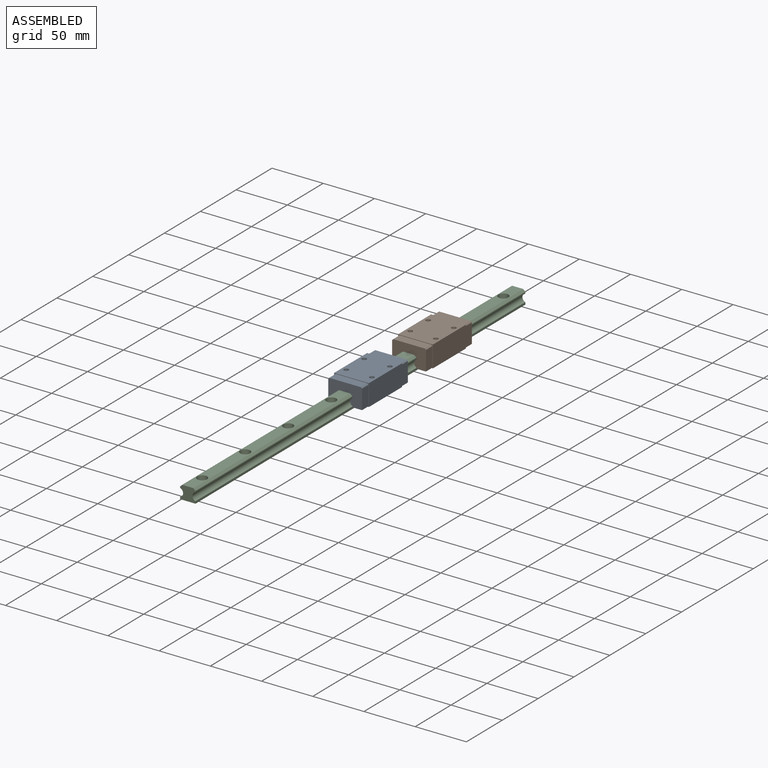
[diagram: assembled view]
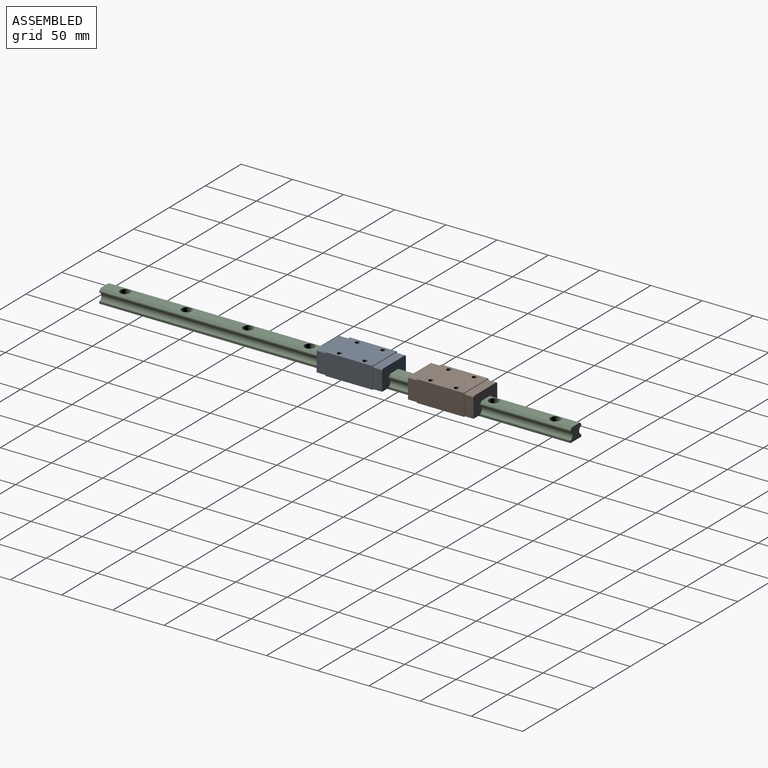
[diagram: assembled view, second angle]
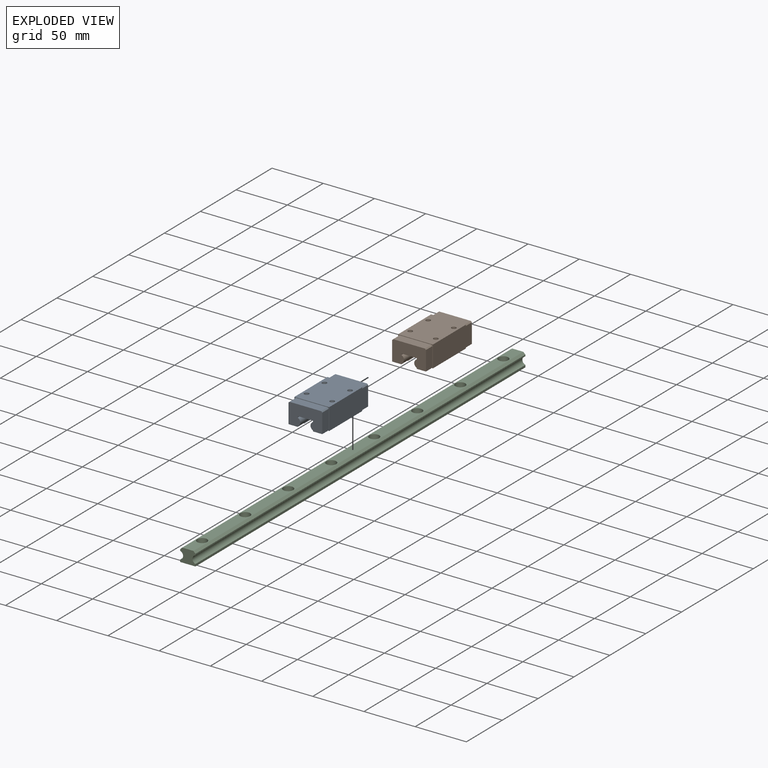
[diagram: exploded view]
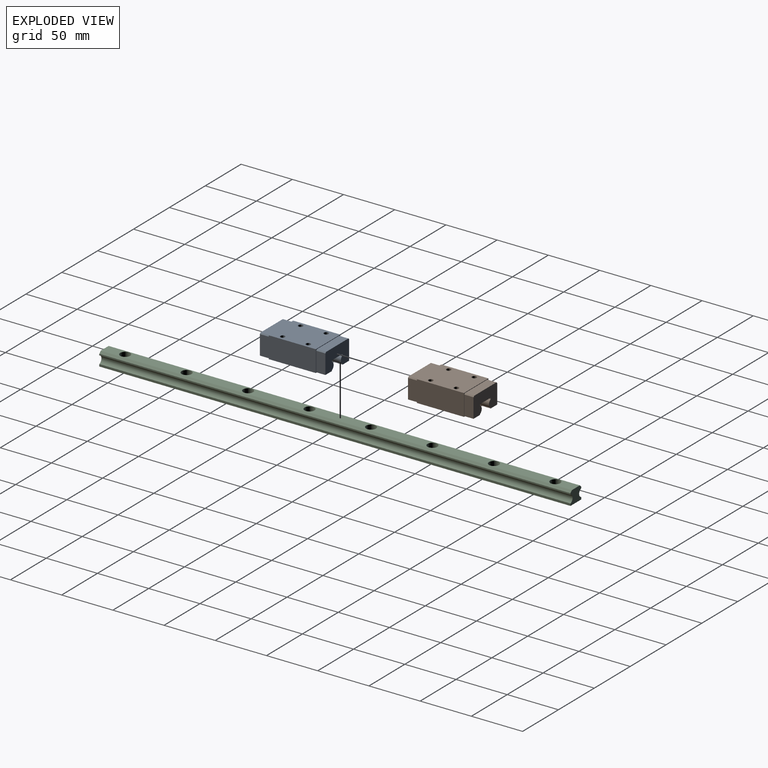
[diagram: exploded view, second angle]
ASSEMBLY  parts=3 mates=3
PART A: 38 faces, bbox 34x64x21 mm
  f0: plane 33x20mm, normal (0,1,0), area 543.3mm2, adj f6,f7,f9,f10,f11,f12,f13,f22
  f1: plane 46x9.5mm, normal (0,0,-1), area 437mm2, adj f2,f6,f21,f29
  f2: plane 46x21mm, normal (1,0,0), area 966mm2, adj f1,f3,f21,f29
  f3: plane 46x34mm, normal (0,0,1), area 1500.4mm2, adj f2,f4,f21,f29,f30,f32,f34,f36
  f4: plane 46x21mm, normal (-1,0,0), area 966mm2, adj f3,f5,f21,f29
  f5: plane 46x9.5mm, normal (0,0,-1), area 437mm2, adj f4,f7,f21,f29
  f6: plane 64x1.29mm, normal (-1,0,0), area 73.7mm2, adj f0,f1,f8,f10,f15,f21,f23,f29
  f7: plane 64x1.29mm, normal (1,0,0), area 73.7mm2, adj f0,f5,f8,f11,f14,f21,f22,f29
  f8: plane 33x20mm, normal (0,-1,0), area 543.3mm2, adj f6,f7,f9,f10,f11,f12,f13,f14
  f9: plane 64x1.29mm, normal (-1,0,0), area 82.7mm2, adj f0,f8,f10,f13
  f10: cylinder r=4mm len=64mm, axis (0,1,0), area 607.4mm2, adj f0,f6,f8,f9
  f11: cylinder r=4mm len=64mm, axis (0,1,0), area 607.4mm2, adj f0,f7,f8,f12
  f12: plane 64x1.29mm, normal (1,0,0), area 82.7mm2, adj f0,f8,f11,f13
  f13: plane 64x15mm, normal (0,0,-1), area 960mm2, adj f0,f8,f9,f12
  f14: plane 9x9mm, normal (0,0,-1), area 81mm2, adj f7,f8,f16,f21
  f15: plane 9x9mm, normal (0,0,-1), area 81mm2, adj f6,f8,f20,f21
  f16: plane 19x9mm, normal (-1,0,0), area 171mm2, adj f8,f14,f17,f21
  f17: plane 9x1mm, normal (-0.71,0,0.71), area 12.7mm2, adj f8,f16,f18,f21
  f18: plane 31x9mm, normal (0,0,1), area 279mm2, adj f8,f17,f19,f21
  f19: plane 9x1mm, normal (0.71,0,0.71), area 12.7mm2, adj f8,f18,f20,f21
  f20: plane 19x9mm, normal (1,0,0), area 171mm2, adj f8,f15,f19,f21
  f21: plane 34x21mm, normal (0,-1,0), area 47.5mm2, adj f1,f2,f3,f4,f5,f6,f7,f14
  f22: plane 9x9mm, normal (0,0,-1), area 81mm2, adj f0,f7,f28,f29
  f23: plane 9x9mm, normal (0,0,-1), area 81mm2, adj f0,f6,f24,f29
  f24: plane 19x9mm, normal (1,0,0), area 171mm2, adj f0,f23,f25,f29
  f25: plane 9x1mm, normal (0.71,0,0.71), area 12.7mm2, adj f0,f24,f26,f29
  f26: plane 31x9mm, normal (0,0,1), area 279mm2, adj f0,f25,f27,f29
  f27: plane 9x1mm, normal (-0.71,0,0.71), area 12.7mm2, adj f0,f26,f28,f29
  f28: plane 19x9mm, normal (-1,0,0), area 171mm2, adj f0,f22,f27,f29
  f29: plane 34x21mm, normal (0,1,0), area 47.5mm2, adj f1,f2,f3,f4,f5,f6,f7,f22
  f30: cylinder r=2.25mm len=10.4mm, axis (0,0,1), area 147mm2, adj f3,f31
  f31: cone r=0mm half-angle=59deg, axis (0,0,1), area 18.6mm2, adj f30
  f32: cylinder r=2.25mm len=10.4mm, axis (0,0,1), area 147mm2, adj f3,f33
  f33: cone r=0mm half-angle=59deg, axis (0,0,1), area 18.6mm2, adj f32
  f34: cylinder r=2.25mm len=10.4mm, axis (0,0,1), area 147mm2, adj f3,f35
  f35: cone r=0mm half-angle=59deg, axis (0,0,1), area 18.6mm2, adj f34
  f36: cylinder r=2.25mm len=10.4mm, axis (0,0,1), area 147mm2, adj f3,f37
  f37: cone r=0mm half-angle=59deg, axis (0,0,1), area 18.6mm2, adj f36
PART B: same geometry as A
PART C: 36 faces, bbox 15x460x13.2 mm
  f0: plane 460x11mm, normal (0,0,1), area 4462.7mm2, adj f1,f9,f10,f11,f14,f17,f20,f23
  f1: plane 460x2mm, normal (-0.71,0,0.71), area 1301.1mm2, adj f0,f2,f10,f11
  f2: plane 460x1.35mm, normal (-1,0,0), area 621.6mm2, adj f1,f3,f10,f11
  f3: cylinder r=4mm len=460mm, axis (0,1,0), area 4764.9mm2, adj f2,f4,f10,f11
  f4: plane 460x2.15mm, normal (-1,0,0), area 989.6mm2, adj f3,f5,f10,f11
  f5: plane 460x15mm, normal (0,0,-1), area 6709.9mm2, adj f4,f6,f10,f11,f12,f15,f18,f21
  f6: plane 460x2.15mm, normal (1,0,0), area 989.6mm2, adj f5,f7,f10,f11
  f7: cylinder r=4mm len=460mm, axis (0,1,0), area 4764.9mm2, adj f6,f8,f10,f11
  f8: plane 460x1.35mm, normal (1,0,0), area 621.6mm2, adj f7,f9,f10,f11
  f9: plane 460x2mm, normal (0.71,0,0.71), area 1301.1mm2, adj f0,f8,f10,f11
  f10: plane 15x13.2mm, normal (0,-1,0), area 161mm2, adj f0,f1,f2,f3,f4,f5,f6,f7
  f11: plane 15x13.2mm, normal (0,1,0), area 161mm2, adj f0,f1,f2,f3,f4,f5,f6,f7
  f12: cylinder r=2.75mm len=8.2mm, axis (0,0,1), area 141.7mm2, adj f5,f13
  f13: plane 9.75x9.75mm, normal (0,0,1), area 50.9mm2, adj f12,f14
  f14: cylinder r=4.88mm len=9.75mm, axis (0,0,1), area 153.2mm2, adj f0,f13
  f15: cylinder r=2.75mm len=8.2mm, axis (0,0,1), area 141.7mm2, adj f5,f16
  f16: plane 9.75x9.75mm, normal (0,0,1), area 50.9mm2, adj f15,f17
  f17: cylinder r=4.88mm len=9.75mm, axis (0,0,1), area 153.2mm2, adj f0,f16
  f18: cylinder r=2.75mm len=8.2mm, axis (0,0,1), area 141.7mm2, adj f5,f19
  f19: plane 9.75x9.75mm, normal (0,0,1), area 50.9mm2, adj f18,f20
  f20: cylinder r=4.88mm len=9.75mm, axis (0,0,1), area 153.2mm2, adj f0,f19
  f21: cylinder r=2.75mm len=8.2mm, axis (0,0,1), area 141.7mm2, adj f5,f22
  f22: plane 9.75x9.75mm, normal (0,0,1), area 50.9mm2, adj f21,f23
  f23: cylinder r=4.88mm len=9.75mm, axis (0,0,1), area 153.2mm2, adj f0,f22
  f24: cylinder r=2.75mm len=8.2mm, axis (0,0,1), area 141.7mm2, adj f5,f25
  f25: plane 9.75x9.75mm, normal (0,0,1), area 50.9mm2, adj f24,f26
  f26: cylinder r=4.88mm len=9.75mm, axis (0,0,1), area 153.2mm2, adj f0,f25
  f27: cylinder r=2.75mm len=8.2mm, axis (0,0,1), area 141.7mm2, adj f5,f28
  f28: plane 9.75x9.75mm, normal (0,0,1), area 50.9mm2, adj f27,f29
  f29: cylinder r=4.88mm len=9.75mm, axis (0,0,1), area 153.2mm2, adj f0,f28
  f30: cylinder r=2.75mm len=8.2mm, axis (0,0,1), area 141.7mm2, adj f5,f31
  f31: plane 9.75x9.75mm, normal (0,0,1), area 50.9mm2, adj f30,f32
  f32: cylinder r=4.88mm len=9.75mm, axis (0,0,1), area 153.2mm2, adj f0,f31
  f33: cylinder r=2.75mm len=8.2mm, axis (0,0,1), area 141.7mm2, adj f5,f34
  f34: plane 9.75x9.75mm, normal (0,0,1), area 50.9mm2, adj f33,f35
  f35: cylinder r=4.88mm len=9.75mm, axis (0,0,1), area 153.2mm2, adj f0,f34
PLACE A t=(33.7,-213.99,6.94)mm
PLACE B rot(axis=(0,1,0),0deg) t=(33.7,-124.79,6.94)mm
PLACE C t=(33.29,-4.71,5.94)mm fixed
MATE parallel B.f13 <-> C.f0  axis (0,0,-1) through (33.7,-156.79,16.94)mm
MATE cylindrical B.f11 <-> C.f3  axis (0,1,0) through (24.7,-124.79,11.94)mm
MATE cylindrical A.f11 <-> C.f3  axis (0,1,0) through (24.7,-213.99,11.94)mm
